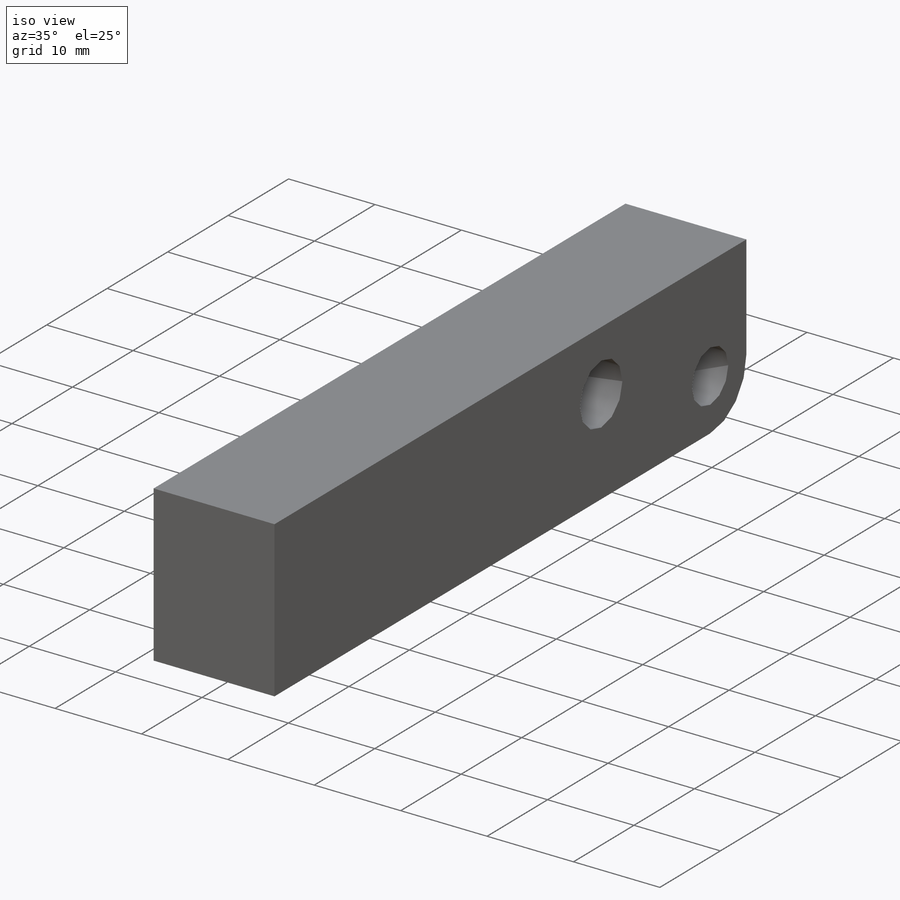
[diagram: iso view]
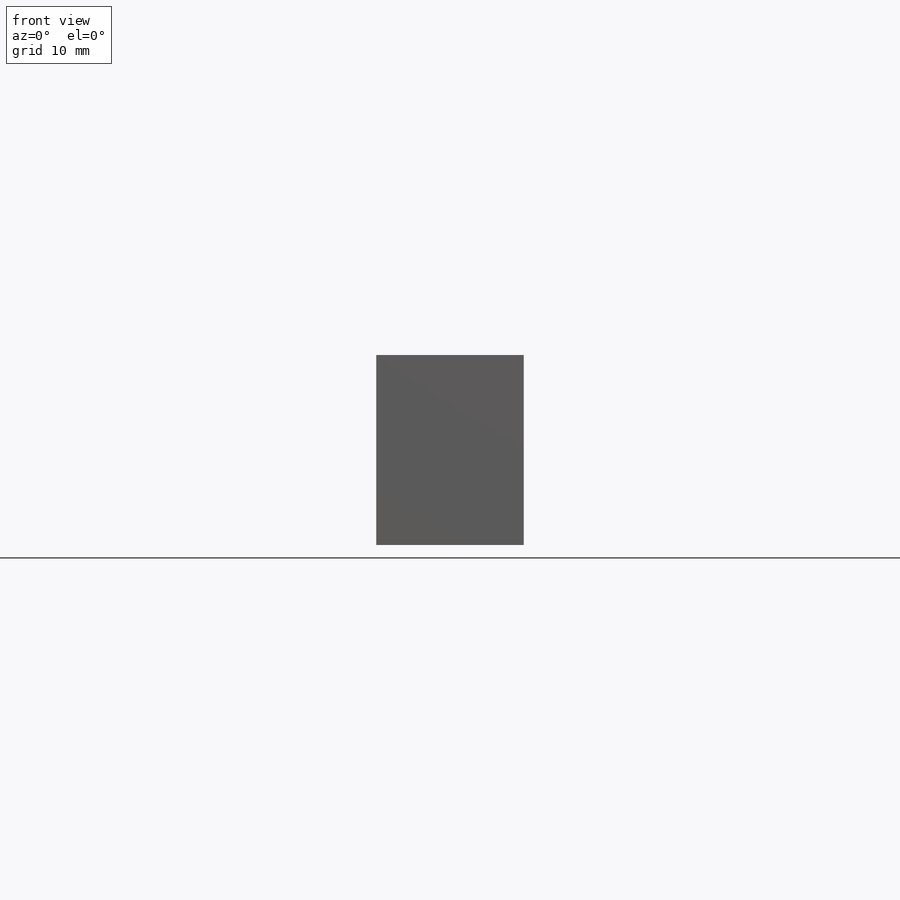
[diagram: front view]
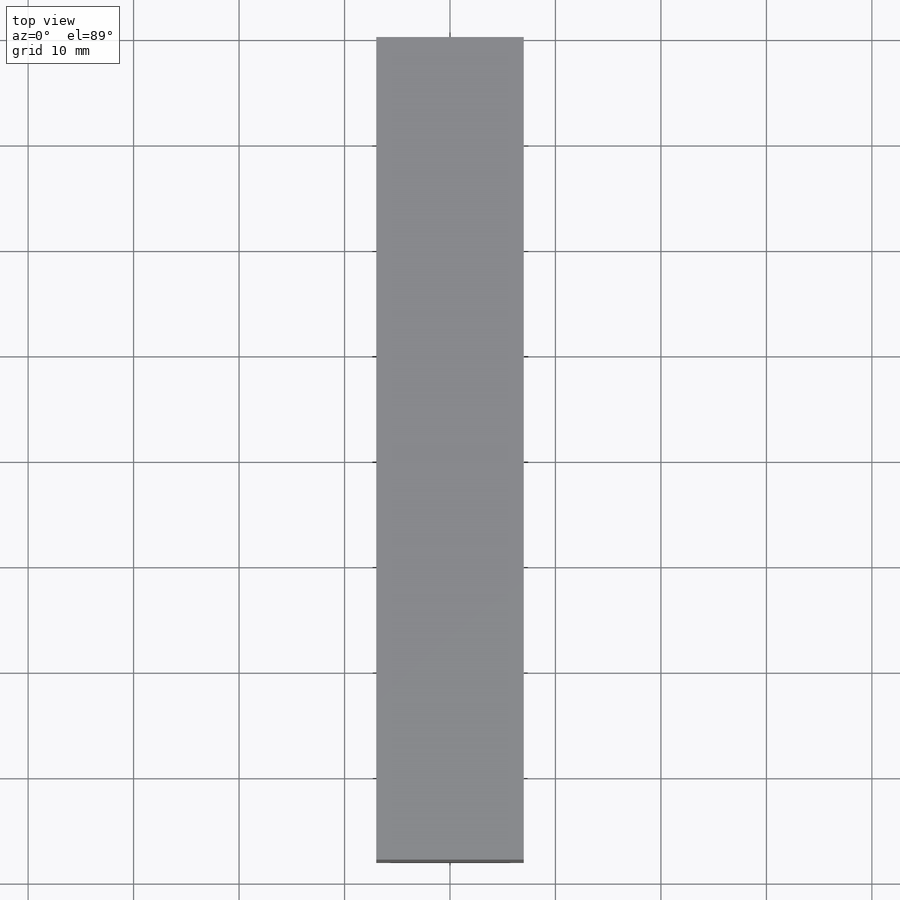
[diagram: top view]
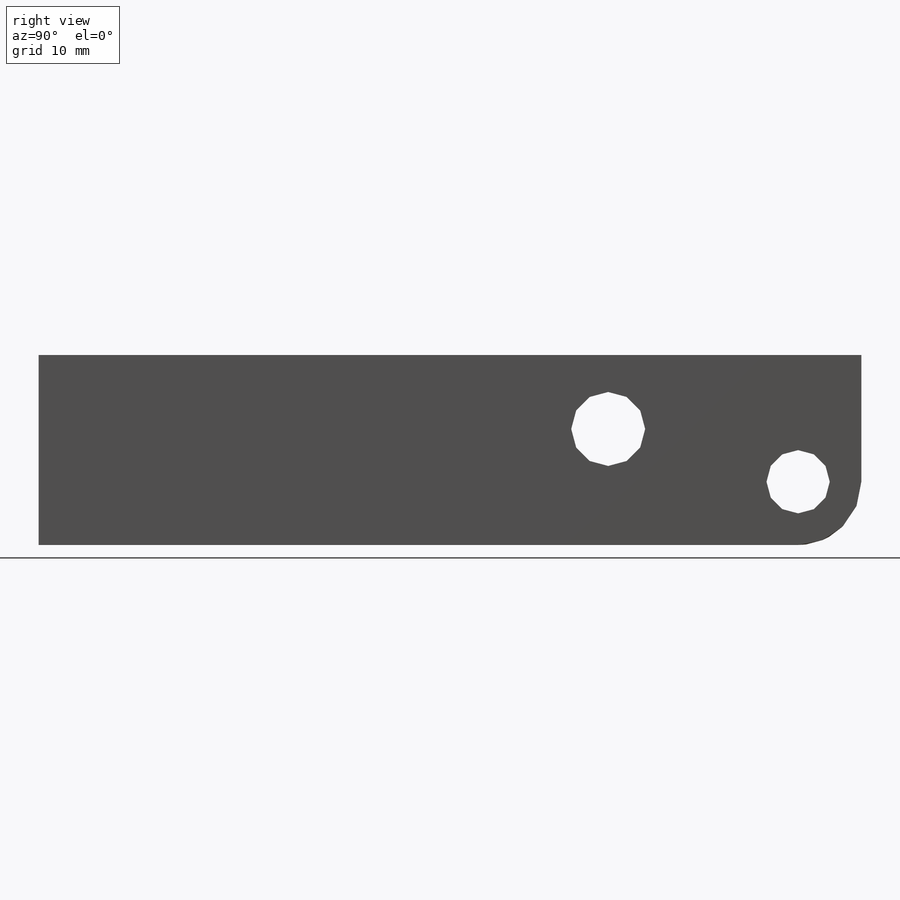
[diagram: right view]
SOLIDWORKS PART (.sldprt)
format: sldprt  version: not decoded by parser v0  size: 227,328 bytes
history: native  units: mm
features: sketch x3, cut_extrude x2, material x1, extrude x1, fillet x1, chamfer x1 (+11 scaffold rows collapsed)
feature tree (20):
  scaffold x11  (default folders/planes/origin — collapsed)
  material  "AISI 1020"
  sketch  "S2D0001"  dims[D1=18.0086mm D2=78.0034mm]
  extrude  "Extrude1"  Depth=6.9977mm
  sketch  "Sketch2"  dims[c1.D1=5.9944mm c1.D4=7.0104mm c1.D6=5.0mm c1.D5=5.0mm c1.D2=5.9944mm c1.D3=5.9944mm c2.D5=15.0mm c2.D6=5.0038mm c3.D5=18.0086mm]
  cut_extrude  "Cut-Extrude1"  Depth=100mm
  sketch  "Sketch5"  dims[c1.D3=2.65mm c1.D1=6.2992mm c1.D2=3.8481mm c2.D3=16.3576mm]
  cut_extrude  "Cut-Extrude3"  Depth=13.208mm
  fillet  "Fillet2"  Radius=5.9944mm
  chamfer  "Chamfer2"  Distance=0.762mm Angle=45deg
decode coverage: 8 of 8 modeling features carry decoded parameters
note: suppression state not decoded; provenance and decode notes live in map.json
